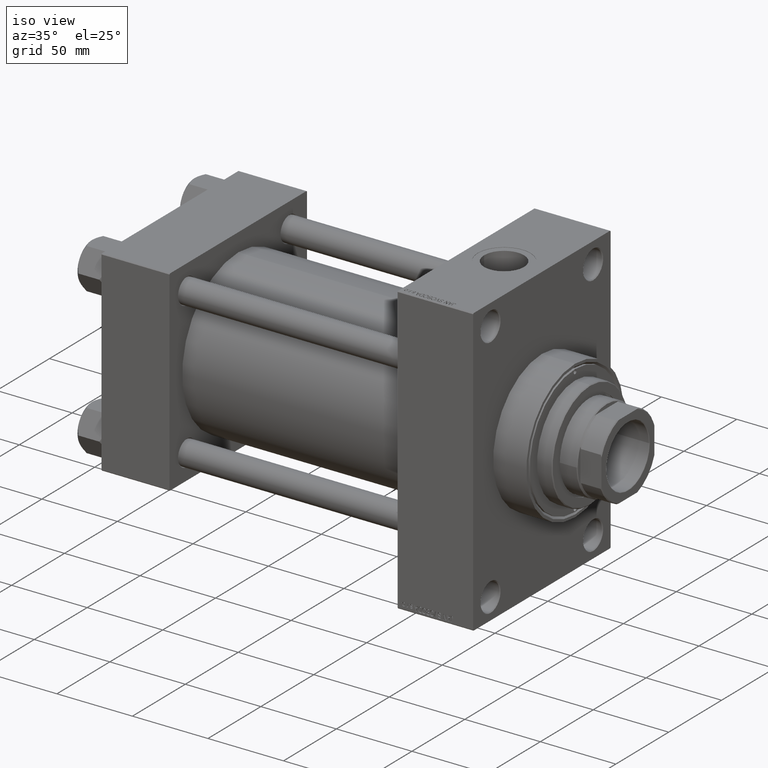
[diagram: clean part render]
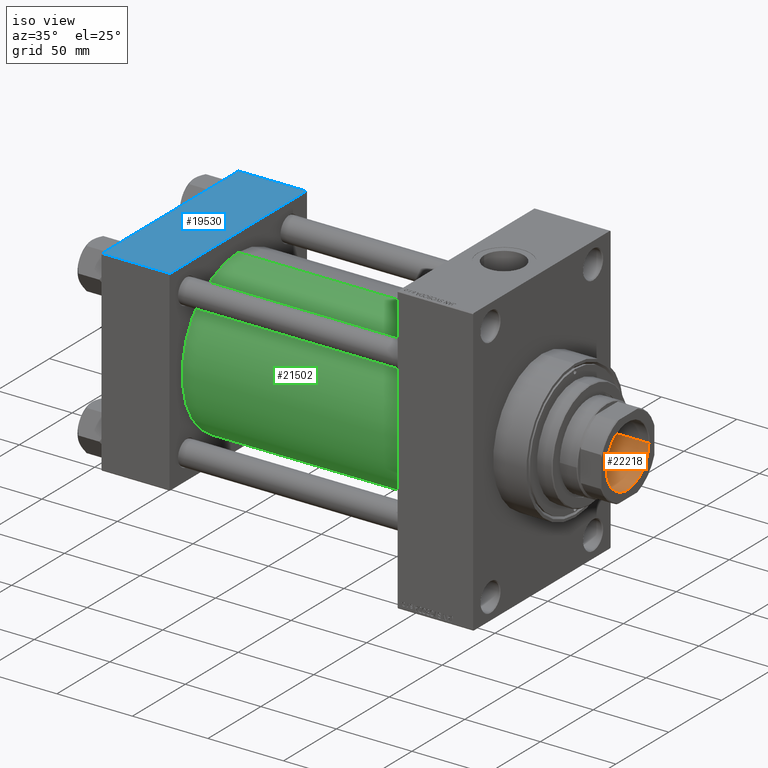
[diagram: same view with three faces highlighted in distinct colors, each labeled with its STEP entity id]
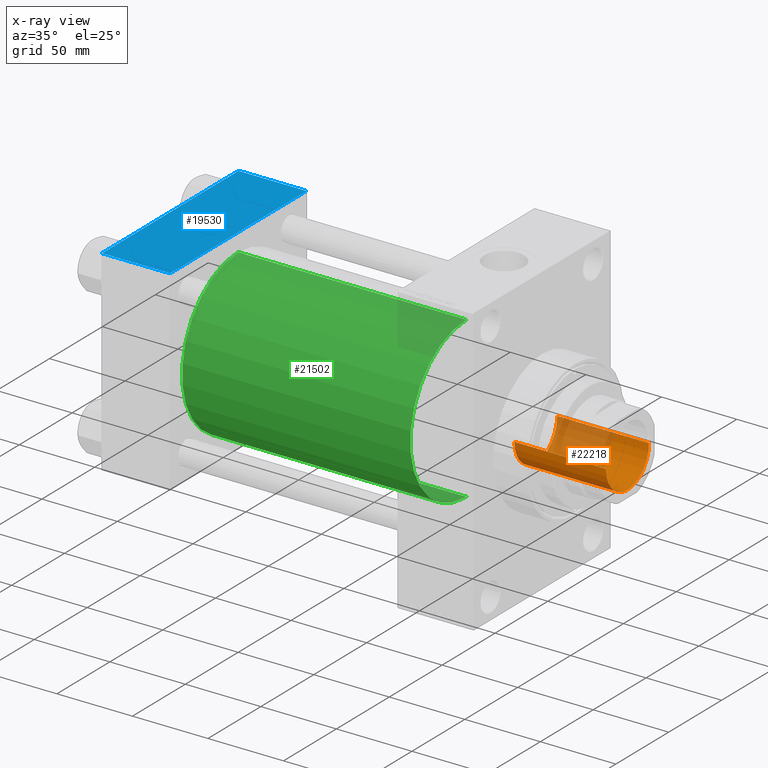
[diagram: x-ray of the same camera — body ghosted, the three highlighted faces saturated]
A machine part, iso view with three faces highlighted in distinct colors.
The next image is the same camera in x-ray (body ghosted, the three faces saturated) — at least one of them is partly hidden behind the body in this view.
Their STEP definitions:

[orange] entity #22218 — the highlighted cylindrical surface (partial cylindrical patch) has radius 20.25 mm, axis along (1, 0, 0).
#98 = LINE ( 'NONE', #25819, #19453 ) ;
#827 = ORIENTED_EDGE ( 'NONE', *, *, #14561, .T. ) ;
#2216 = EDGE_LOOP ( 'NONE', ( #45824, #29554, #827, #45932 ) ) ;
#2417 = DIRECTION ( 'NONE',  ( -0.000000000000000000, -0.000000000000000000, 1.000000000000000000 ) ) ;
#8145 = CARTESIAN_POINT ( 'NONE',  ( 0.000000000000000000, 0.000000000000000000, 257.6999999999999886 ) ) ;
#12260 = DIRECTION ( 'NONE',  ( 0.000000000000000000, 0.000000000000000000, 1.000000000000000000 ) ) ;
#12509 = CYLINDRICAL_SURFACE ( 'NONE', #30174, 20.24999999999999289 ) ;
#14561 = EDGE_CURVE ( 'NONE', #33256, #42304, #28372, .T. ) ;
#16167 = AXIS2_PLACEMENT_3D ( 'NONE', #43451, #39584, #28430 ) ;
#16285 = EDGE_CURVE ( 'NONE', #42304, #44620, #47791, .T. ) ;
#18827 = CARTESIAN_POINT ( 'NONE',  ( -20.24999999999999289, 2.479909768273389511E-15, 257.6999999999999886 ) ) ;
#19153 = VECTOR ( 'NONE', #2417, 1000.000000000000000 ) ;
#19453 = VECTOR ( 'NONE', #33333, 1000.000000000000000 ) ;
#20841 = EDGE_CURVE ( 'NONE', #33256, #34362, #30912, .T. ) ;
#22218 = ADVANCED_FACE ( 'NONE', ( #23179 ), #12509, .F. ) ;
#23179 = FACE_OUTER_BOUND ( 'NONE', #2216, .T. ) ;
#25819 = CARTESIAN_POINT ( 'NONE',  ( -20.24999999999999289, 2.479909768273389511E-15, 258.0000000000000000 ) ) ;
#27320 = DIRECTION ( 'NONE',  ( 1.000000000000000000, 0.000000000000000000, 0.000000000000000000 ) ) ;
#27558 = DIRECTION ( 'NONE',  ( -0.000000000000000000, -0.000000000000000000, 1.000000000000000000 ) ) ;
#27787 = DIRECTION ( 'NONE',  ( 1.000000000000000000, 0.000000000000000000, 0.000000000000000000 ) ) ;
#28372 = LINE ( 'NONE', #32261, #19153 ) ;
#28430 = DIRECTION ( 'NONE',  ( 1.000000000000000000, 0.000000000000000000, 0.000000000000000000 ) ) ;
#29554 = ORIENTED_EDGE ( 'NONE', *, *, #20841, .F. ) ;
#30174 = AXIS2_PLACEMENT_3D ( 'NONE', #37984, #27558, #27320 ) ;
#30273 = EDGE_CURVE ( 'NONE', #34362, #44620, #98, .T. ) ;
#30912 = CIRCLE ( 'NONE', #16167, 20.24999999999998934 ) ;
#32039 = CARTESIAN_POINT ( 'NONE',  ( 20.24999999999999289, 0.000000000000000000, 257.6999999999999886 ) ) ;
#32261 = CARTESIAN_POINT ( 'NONE',  ( 20.24999999999999289, 0.000000000000000000, 258.0000000000000000 ) ) ;
#33102 = AXIS2_PLACEMENT_3D ( 'NONE', #8145, #12260, #27787 ) ;
#33256 = VERTEX_POINT ( 'NONE', #46986 ) ;
#33333 = DIRECTION ( 'NONE',  ( -0.000000000000000000, -0.000000000000000000, 1.000000000000000000 ) ) ;
#34362 = VERTEX_POINT ( 'NONE', #34906 ) ;
#34906 = CARTESIAN_POINT ( 'NONE',  ( -20.24999999999998934, 2.479909768273389117E-15, 197.0000000000000000 ) ) ;
#37984 = CARTESIAN_POINT ( 'NONE',  ( 0.000000000000000000, 0.000000000000000000, 258.0000000000000000 ) ) ;
#39584 = DIRECTION ( 'NONE',  ( -0.000000000000000000, -0.000000000000000000, 1.000000000000000000 ) ) ;
#42304 = VERTEX_POINT ( 'NONE', #32039 ) ;
#43451 = CARTESIAN_POINT ( 'NONE',  ( 0.000000000000000000, 0.000000000000000000, 197.0000000000000000 ) ) ;
#44620 = VERTEX_POINT ( 'NONE', #18827 ) ;
#45824 = ORIENTED_EDGE ( 'NONE', *, *, #30273, .F. ) ;
#45932 = ORIENTED_EDGE ( 'NONE', *, *, #16285, .T. ) ;
#46986 = CARTESIAN_POINT ( 'NONE',  ( 20.24999999999998934, 0.000000000000000000, 197.0000000000000000 ) ) ;
#47791 = CIRCLE ( 'NONE', #33102, 20.24999999999999289 ) ;

[blue] entity #19530 — the highlighted planar face has unit normal (0, 0, -1).
#352 = ORIENTED_EDGE ( 'NONE', *, *, #17854, .F. ) ;
#2782 = LINE ( 'NONE', #32388, #3730 ) ;
#3730 = VECTOR ( 'NONE', #43516, 1000.000000000000000 ) ;
#4497 = CARTESIAN_POINT ( 'NONE',  ( 45.00000000000000000, 65.00000000000000000, 65.00000000000001421 ) ) ;
#4851 = CARTESIAN_POINT ( 'NONE',  ( 45.00000000000000000, 64.49999999999997158, 65.00000000000001421 ) ) ;
#5170 = EDGE_LOOP ( 'NONE', ( #28486, #38794, #352, #22309 ) ) ;
#8432 = CARTESIAN_POINT ( 'NONE',  ( 45.00000000000000000, -64.49999999999997158, 65.00000000000000000 ) ) ;
#8659 = VECTOR ( 'NONE', #21399, 1000.000000000000000 ) ;
#9769 = EDGE_CURVE ( 'NONE', #22942, #36599, #34331, .T. ) ;
#12483 = DIRECTION ( 'NONE',  ( 0.000000000000000000, 1.067522139062650548E-16, -1.000000000000000000 ) ) ;
#13158 = LINE ( 'NONE', #13403, #8659 ) ;
#13403 = CARTESIAN_POINT ( 'NONE',  ( 0.000000000000000000, 64.49999999999997158, 65.00000000000001421 ) ) ;
#14522 = VECTOR ( 'NONE', #16501, 1000.000000000000000 ) ;
#15007 = EDGE_CURVE ( 'NONE', #18476, #22942, #2782, .T. ) ;
#15877 = DIRECTION ( 'NONE',  ( 0.000000000000000000, 1.000000000000000000, 1.067522139062650548E-16 ) ) ;
#16501 = DIRECTION ( 'NONE',  ( 0.000000000000000000, -1.000000000000000000, -1.067522139062650425E-16 ) ) ;
#17854 = EDGE_CURVE ( 'NONE', #36226, #36599, #27445, .T. ) ;
#18476 = VERTEX_POINT ( 'NONE', #26619 ) ;
#19530 = ADVANCED_FACE ( 'NONE', ( #34335 ), #45950, .F. ) ;
#21399 = DIRECTION ( 'NONE',  ( -1.000000000000000000, 0.000000000000000000, 0.000000000000000000 ) ) ;
#22309 = ORIENTED_EDGE ( 'NONE', *, *, #45139, .T. ) ;
#22942 = VERTEX_POINT ( 'NONE', #45257 ) ;
#23058 = CARTESIAN_POINT ( 'NONE',  ( 45.00000000000000000, 65.00000000000000000, 65.00000000000001421 ) ) ;
#26619 = CARTESIAN_POINT ( 'NONE',  ( 0.000000000000000000, 64.49999999999997158, 65.00000000000001421 ) ) ;
#27445 = LINE ( 'NONE', #23058, #14522 ) ;
#28486 = ORIENTED_EDGE ( 'NONE', *, *, #15007, .T. ) ;
#30686 = DIRECTION ( 'NONE',  ( 1.000000000000000000, 0.000000000000000000, 0.000000000000000000 ) ) ;
#32388 = CARTESIAN_POINT ( 'NONE',  ( 0.000000000000000000, 65.00000000000000000, 65.00000000000001421 ) ) ;
#34331 = LINE ( 'NONE', #41359, #47099 ) ;
#34335 = FACE_OUTER_BOUND ( 'NONE', #5170, .T. ) ;
#36226 = VERTEX_POINT ( 'NONE', #4851 ) ;
#36274 = AXIS2_PLACEMENT_3D ( 'NONE', #4497, #12483, #15877 ) ;
#36599 = VERTEX_POINT ( 'NONE', #8432 ) ;
#38794 = ORIENTED_EDGE ( 'NONE', *, *, #9769, .T. ) ;
#41359 = CARTESIAN_POINT ( 'NONE',  ( 45.00000000000000000, -64.49999999999997158, 65.00000000000000000 ) ) ;
#43516 = DIRECTION ( 'NONE',  ( 0.000000000000000000, -1.000000000000000000, -1.067522139062650425E-16 ) ) ;
#45139 = EDGE_CURVE ( 'NONE', #36226, #18476, #13158, .T. ) ;
#45257 = CARTESIAN_POINT ( 'NONE',  ( 0.000000000000000000, -64.49999999999997158, 65.00000000000000000 ) ) ;
#45950 = PLANE ( 'NONE',  #36274 ) ;
#47099 = VECTOR ( 'NONE', #30686, 1000.000000000000000 ) ;

[green] entity #21502 — the highlighted cylindrical surface (partial cylindrical patch) has radius 53 mm, axis along (-1, -0, -0).
#1747 = CYLINDRICAL_SURFACE ( 'NONE', #25514, 53.00000000000000711 ) ;
#2246 = AXIS2_PLACEMENT_3D ( 'NONE', #14975, #18370, #44562 ) ;
#2290 = ORIENTED_EDGE ( 'NONE', *, *, #7707, .F. ) ;
#4486 = DIRECTION ( 'NONE',  ( 0.000000000000000000, 0.000000000000000000, 1.000000000000000000 ) ) ;
#6014 = AXIS2_PLACEMENT_3D ( 'NONE', #22775, #41706, #31276 ) ;
#6306 = LINE ( 'NONE', #39051, #21521 ) ;
#6597 = CARTESIAN_POINT ( 'NONE',  ( 196.0000000000000000, -2.602085213965210642E-15, 53.00000000000000711 ) ) ;
#7073 = DIRECTION ( 'NONE',  ( -1.000000000000000000, -0.000000000000000000, -0.000000000000000000 ) ) ;
#7247 = ORIENTED_EDGE ( 'NONE', *, *, #25869, .T. ) ;
#7707 = EDGE_CURVE ( 'NONE', #14218, #30261, #14529, .T. ) ;
#7862 = EDGE_CURVE ( 'NONE', #13553, #12723, #45504, .T. ) ;
#9019 = CARTESIAN_POINT ( 'NONE',  ( 196.0000000000000000, -2.602085213965210642E-15, 0.000000000000000000 ) ) ;
#12723 = VERTEX_POINT ( 'NONE', #45318 ) ;
#13553 = VERTEX_POINT ( 'NONE', #44458 ) ;
#14218 = VERTEX_POINT ( 'NONE', #19461 ) ;
#14529 = CIRCLE ( 'NONE', #6014, 53.00000000000000711 ) ;
#14975 = CARTESIAN_POINT ( 'NONE',  ( 44.99999999999998579, -2.602085213965210642E-15, 0.000000000000000000 ) ) ;
#15388 = FACE_OUTER_BOUND ( 'NONE', #18023, .T. ) ;
#15512 = EDGE_CURVE ( 'NONE', #30261, #12723, #6306, .T. ) ;
#16718 = DIRECTION ( 'NONE',  ( -1.000000000000000000, -0.000000000000000000, -0.000000000000000000 ) ) ;
#18023 = EDGE_LOOP ( 'NONE', ( #26154, #2290, #7247, #47006 ) ) ;
#18370 = DIRECTION ( 'NONE',  ( 1.000000000000000000, -0.000000000000000000, 0.000000000000000000 ) ) ;
#19461 = CARTESIAN_POINT ( 'NONE',  ( 196.0000000000000000, -2.602085213965210642E-15, 53.00000000000000711 ) ) ;
#21378 = LINE ( 'NONE', #6597, #42666 ) ;
#21502 = ADVANCED_FACE ( 'NONE', ( #15388 ), #1747, .T. ) ;
#21521 = VECTOR ( 'NONE', #16718, 1000.000000000000000 ) ;
#22775 = CARTESIAN_POINT ( 'NONE',  ( 196.0000000000000000, -2.602085213965210642E-15, 0.000000000000000000 ) ) ;
#25101 = CARTESIAN_POINT ( 'NONE',  ( 196.0000000000000000, 3.888542821515762466E-15, -53.00000000000000711 ) ) ;
#25514 = AXIS2_PLACEMENT_3D ( 'NONE', #9019, #31591, #4486 ) ;
#25869 = EDGE_CURVE ( 'NONE', #14218, #13553, #21378, .T. ) ;
#26154 = ORIENTED_EDGE ( 'NONE', *, *, #15512, .F. ) ;
#30261 = VERTEX_POINT ( 'NONE', #25101 ) ;
#31276 = DIRECTION ( 'NONE',  ( 0.000000000000000000, 0.000000000000000000, -1.000000000000000000 ) ) ;
#31591 = DIRECTION ( 'NONE',  ( -1.000000000000000000, -0.000000000000000000, -0.000000000000000000 ) ) ;
#39051 = CARTESIAN_POINT ( 'NONE',  ( 196.0000000000000000, 3.888542821515762466E-15, -53.00000000000000711 ) ) ;
#41706 = DIRECTION ( 'NONE',  ( 1.000000000000000000, 0.000000000000000000, 0.000000000000000000 ) ) ;
#42666 = VECTOR ( 'NONE', #7073, 1000.000000000000000 ) ;
#44458 = CARTESIAN_POINT ( 'NONE',  ( 44.99999999999998579, -2.602085213965210642E-15, 53.00000000000000711 ) ) ;
#44562 = DIRECTION ( 'NONE',  ( 0.000000000000000000, 0.000000000000000000, 1.000000000000000000 ) ) ;
#45318 = CARTESIAN_POINT ( 'NONE',  ( 44.99999999999998579, 3.888542821515762466E-15, -53.00000000000000711 ) ) ;
#45504 = CIRCLE ( 'NONE', #2246, 53.00000000000000711 ) ;
#47006 = ORIENTED_EDGE ( 'NONE', *, *, #7862, .T. ) ;